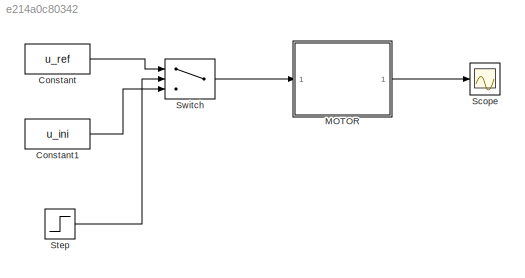
MODEL slx_e214a0c80342
KIND model
CONFIG AbsTol = auto
CONFIG FixedStep = auto
CONFIG MaxStep = auto
CONFIG MinStep = auto
CONFIG RelTol = 1e-3
CONFIG SampleTimeConstraint = Unconstrained
CONFIG Solver = ode45
CONFIG SolverMode = Auto
CONFIG SolverName = ode45
CONFIG StartTime = 0.0
CONFIG StopTime = 10.0
BLOCK [Constant] Constant
  Value = u_ref
BLOCK [Constant] Constant1
  Value = u_ini
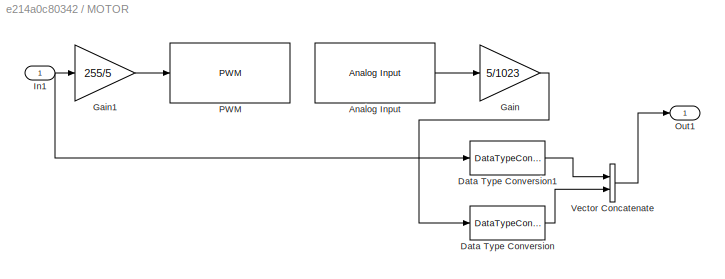
BLOCK [SubSystem] MOTOR 
  Ports = [1, 1]
  RequestExecContextInheritance = off
BLOCK [Reference] MOTOR /Analog Input  REF=arduinolib/Analog Input
  Ports = [0, 1]
  SourceBlock = arduinolib/Analog Input
  SourceType = Arduino Analog Input
  blockPlatform = arduino
  pinNumber = 5
  sampleTime = 0.01
BLOCK [DataTypeConversion] MOTOR /Data Type Conversion
  RndMeth = Floor
  SaturateOnIntegerOverflow = off
BLOCK [DataTypeConversion] MOTOR /Data Type Conversion1
  RndMeth = Floor
  SaturateOnIntegerOverflow = off
BLOCK [Gain] MOTOR /Gain
  Gain = 5/1023
  OutDataTypeStr = Inherit: Inherit via internal rule
  ParamDataTypeStr = Inherit: Inherit via internal rule
  SaturateOnIntegerOverflow = off
BLOCK [Gain] MOTOR /Gain1
  Gain = 255/5
  OutDataTypeStr = Inherit: Inherit via internal rule
  ParamDataTypeStr = Inherit: Inherit via internal rule
  SaturateOnIntegerOverflow = off
BLOCK [Inport] MOTOR /In1
  IconDisplay = Port number
BLOCK [Outport] MOTOR /Out1
  IconDisplay = Port number
BLOCK [Reference] MOTOR /PWM  REF=arduinolib/PWM
  Ports = [1]
  SourceBlock = arduinolib/PWM
  SourceType = Arduino PWM
  blockPlatform = arduino
  pinNumber = 9
BLOCK [Concatenate] MOTOR /Vector Concatenate
  Ports = [2, 1]
BLOCK [Scope] Scope
  Floating = off
  NumInputPorts = 1
  Ports = [1]
  SaveName = yout
  SaveToWorkspace = on
BLOCK [Step] Step
  SampleTime = 0
BLOCK [Switch] Switch
  Criteria = u2 > Threshold
  InputSameDT = off
  SaturateOnIntegerOverflow = off
LINE Constant1:1 -> Switch:3
LINE Constant:1 -> Switch:1
LINE MOTOR /Analog Input:1 -> MOTOR /Gain:1
LINE MOTOR /Data Type Conversion1:1 -> MOTOR /Vector Concatenate:1
LINE MOTOR /Data Type Conversion:1 -> MOTOR /Vector Concatenate:2
LINE MOTOR /Gain1:1 -> MOTOR /PWM:1
LINE MOTOR /Gain:1 -> MOTOR /Data Type Conversion:1
NET MOTOR /In1:1 -> MOTOR /Data Type Conversion1:1, MOTOR /Gain1:1
LINE MOTOR /Vector Concatenate:1 -> MOTOR /Out1:1
LINE MOTOR :1 -> Scope:1
LINE Step:1 -> Switch:2
LINE Switch:1 -> MOTOR :1
note: NET lines group one-source signal fan-out (src -> all destinations, sorted); 1:1 wires keep LINE
